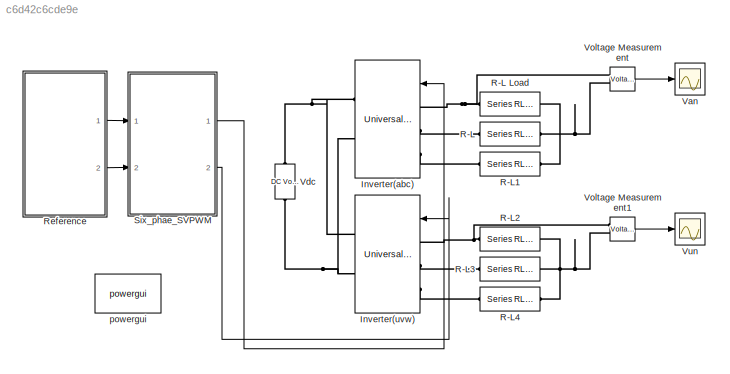
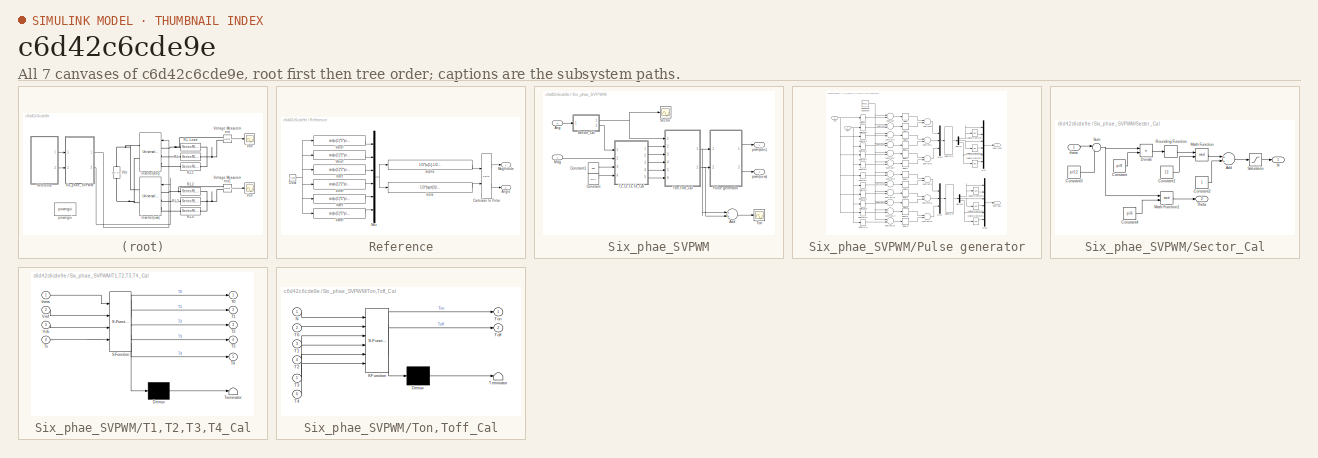
[diagram: thumbnail index - all 7 canvases of the model, root first then tree order]
MODEL slx_c6d42c6cde9e
KIND model
CONFIG InitFcn = Vm=100;\nFc=3000;
BLOCK [Reference] Inverter(abc)  REF=powerlib/Power
Electronics/Universal Bridge
  Arms = 3
  Device = IGBT / Diodes
  ForwardVoltage = 0
  ForwardVoltages = [  0  0  ]
  GTOparameters = [ 10e-6 , 20e-6 ]
  IGBTparameters = [ 1e-6 , 2e-6 ]
  Lon = 0
  Measurements = None
  Measurements_2 = None
  Ports = [1, 0, 0, 0, 0, 3, 2]
  Ron = 1e-3
  SnubberCapacitance = inf
  SnubberResistance = 1e5
  SourceBlock = powerlib/Power\nElectronics/Universal Bridge
  SourceType = Universal Bridge
  converterType = Rectifier
BLOCK [Reference] Inverter(uvw)  REF=powerlib/Power
Electronics/Universal Bridge
  Arms = 3
  Device = IGBT / Diodes
  ForwardVoltage = 0
  ForwardVoltages = [  0  0  ]
  GTOparameters = [ 10e-6 , 20e-6 ]
  IGBTparameters = [ 1e-6 , 2e-6 ]
  Lon = 0
  Measurements = None
  Measurements_2 = None
  Ports = [1, 0, 0, 0, 0, 3, 2]
  Ron = 1e-3
  SnubberCapacitance = inf
  SnubberResistance = 1e5
  SourceBlock = powerlib/Power\nElectronics/Universal Bridge
  SourceType = Universal Bridge
  converterType = Rectifier
BLOCK [Reference] R-L  REF=powerlib/Elements/Series RLC Branch
  AttributesFormatString = \n
  BranchType = RL
  Capacitance = []
  Inductance = 1e-03
  InitialCurrent = 0
  InitialVoltage = 0
  LConnTagsString = __new0
  Measurements = None
  Ports = [0, 0, 0, 0, 0, 1, 1]
  RConnTagsString = __new0
  Resistance = 10
  SetiL0 = off
  Setx0 = off
  SourceBlock = powerlib/Elements/Series RLC Branch
  SourceType = Series RLC Branch
BLOCK [Reference] R-L Load  REF=powerlib/Elements/Series RLC Branch
  AttributesFormatString = \n
  BranchType = RL
  Capacitance = []
  Inductance = 1e-03
  InitialCurrent = 0
  InitialVoltage = 0
  LConnTagsString = __new0
  Measurements = None
  Ports = [0, 0, 0, 0, 0, 1, 1]
  RConnTagsString = __new0
  Resistance = 10
  SetiL0 = off
  Setx0 = off
  SourceBlock = powerlib/Elements/Series RLC Branch
  SourceType = Series RLC Branch
BLOCK [Reference] R-L1  REF=powerlib/Elements/Series RLC Branch
  AttributesFormatString = \n
  BranchType = RL
  Capacitance = []
  Inductance = 1e-03
  InitialCurrent = 0
  InitialVoltage = 0
  LConnTagsString = __new0
  Measurements = None
  Ports = [0, 0, 0, 0, 0, 1, 1]
  RConnTagsString = __new0
  Resistance = 10
  SetiL0 = off
  Setx0 = off
  SourceBlock = powerlib/Elements/Series RLC Branch
  SourceType = Series RLC Branch
BLOCK [Reference] R-L2  REF=powerlib/Elements/Series RLC Branch
  AttributesFormatString = \n
  BranchType = RL
  Capacitance = []
  Inductance = 1e-03
  InitialCurrent = 0
  InitialVoltage = 0
  LConnTagsString = __new0
  Measurements = None
  Ports = [0, 0, 0, 0, 0, 1, 1]
  RConnTagsString = __new0
  Resistance = 10
  SetiL0 = off
  Setx0 = off
  SourceBlock = powerlib/Elements/Series RLC Branch
  SourceType = Series RLC Branch
BLOCK [Reference] R-L3  REF=powerlib/Elements/Series RLC Branch
  AttributesFormatString = \n
  BranchType = RL
  Capacitance = []
  Inductance = 1e-03
  InitialCurrent = 0
  InitialVoltage = 0
  LConnTagsString = __new0
  Measurements = None
  Ports = [0, 0, 0, 0, 0, 1, 1]
  RConnTagsString = __new0
  Resistance = 10
  SetiL0 = off
  Setx0 = off
  SourceBlock = powerlib/Elements/Series RLC Branch
  SourceType = Series RLC Branch
BLOCK [Reference] R-L4  REF=powerlib/Elements/Series RLC Branch
  AttributesFormatString = \n
  BranchType = RL
  Capacitance = []
  Inductance = 1e-03
  InitialCurrent = 0
  InitialVoltage = 0
  LConnTagsString = __new0
  Measurements = None
  Ports = [0, 0, 0, 0, 0, 1, 1]
  RConnTagsString = __new0
  Resistance = 10
  SetiL0 = off
  Setx0 = off
  SourceBlock = powerlib/Elements/Series RLC Branch
  SourceType = Series RLC Branch
BLOCK [SubSystem] Reference
  Ports = [0, 2]
  RequestExecContextInheritance = off
BLOCK [Outport] Reference/Angle
  IconDisplay = Port number
  Port = 2
BLOCK [Reference] Reference/Cartesian to Polar  REF=simulink_extras/Transformations/Cartesian to
Polar
  Ports = [2, 2]
  SourceBlock = simulink_extras/Transformations/Cartesian to\nPolar
  SourceType = Cart2Polar
BLOCK [Clock] Reference/Clock
BLOCK [Outport] Reference/Magnitude
  IconDisplay = Port number
BLOCK [Mux] Reference/Mux
  DisplayOption = bar
  Inputs = 6
  Ports = [6, 1]
BLOCK [Fcn] Reference/Varef
  Expr = cos(u(1)*2*pi*50)*Vm
BLOCK [Fcn] Reference/Vbref
  Expr = cos(u(1)*2*pi*50-2*pi/3)*Vm
BLOCK [Fcn] Reference/Vcref
  Expr = cos(u(1)*2*pi*50+2*pi/3)*Vm
BLOCK [Fcn] Reference/Vuref
  Expr = cos(u(1)*2*pi*50-pi/6)*Vm
BLOCK [Fcn] Reference/Vvref
  Expr = cos(u(1)*2*pi*50-5*pi/6)*Vm
BLOCK [Fcn] Reference/Vwref
  Expr = cos(u(1)*2*pi*50+pi/2)*Vm
BLOCK [Fcn] Reference/alpha
  Expr = 1/3*(u[1]-1/2*u[2]-1/2*u[3]+sqrt(3)/2*u[4]-sqrt(3)/2*u[5])
BLOCK [Fcn] Reference/beta
  Expr = 1/3*(sqrt(3)/2*u[2]-sqrt(3)/2*u[3]+1/2*u[4]+1/2*u[5]-u[6])
BLOCK [SubSystem] Six_phae_SVPWM
  Ports = [2, 2]
  RequestExecContextInheritance = off
BLOCK [Sum] Six_phae_SVPWM/Add
  InputSameDT = off
  OutDataTypeStr = Inherit: Inherit via internal rule
  Ports = [2, 1]
  SaturateOnIntegerOverflow = off
BLOCK [Inport] Six_phae_SVPWM/Ang
  IconDisplay = Port number
  Port = 2
BLOCK [Constant] Six_phae_SVPWM/Constant
  Value = 1/Fc
BLOCK [Constant] Six_phae_SVPWM/Constant1
  Value = 300
BLOCK [Inport] Six_phae_SVPWM/Mag
  IconDisplay = Port number
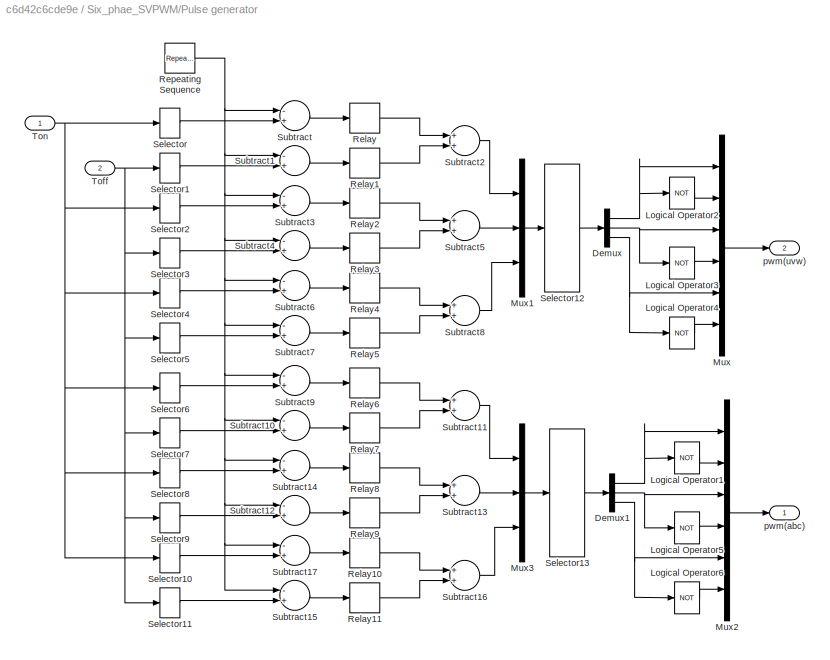
BLOCK [SubSystem] Six_phae_SVPWM/Pulse generator
  Ports = [2, 2]
  RequestExecContextInheritance = off
BLOCK [Demux] Six_phae_SVPWM/Pulse generator/Demux
  DisplayOption = bar
  Outputs = 3
  Ports = [1, 3]
BLOCK [Demux] Six_phae_SVPWM/Pulse generator/Demux1
  DisplayOption = bar
  Outputs = 3
  Ports = [1, 3]
BLOCK [Logic] Six_phae_SVPWM/Pulse generator/Logical Operator1
  Operator = NOT
  OutDataTypeStr = float('double')
  Ports = [1, 1]
BLOCK [Logic] Six_phae_SVPWM/Pulse generator/Logical Operator2
  Operator = NOT
  OutDataTypeStr = float('double')
  Ports = [1, 1]
BLOCK [Logic] Six_phae_SVPWM/Pulse generator/Logical Operator3
  Operator = NOT
  OutDataTypeStr = float('double')
  Ports = [1, 1]
BLOCK [Logic] Six_phae_SVPWM/Pulse generator/Logical Operator4
  Operator = NOT
  OutDataTypeStr = float('double')
  Ports = [1, 1]
BLOCK [Logic] Six_phae_SVPWM/Pulse generator/Logical Operator5
  Operator = NOT
  OutDataTypeStr = float('double')
  Ports = [1, 1]
BLOCK [Logic] Six_phae_SVPWM/Pulse generator/Logical Operator6
  Operator = NOT
  OutDataTypeStr = float('double')
  Ports = [1, 1]
BLOCK [Mux] Six_phae_SVPWM/Pulse generator/Mux
  DisplayOption = bar
  Inputs = 6
  Ports = [6, 1]
BLOCK [Mux] Six_phae_SVPWM/Pulse generator/Mux1
  DisplayOption = bar
  Inputs = 3
  Ports = [3, 1]
BLOCK [Mux] Six_phae_SVPWM/Pulse generator/Mux2
  DisplayOption = bar
  Inputs = 6
  Ports = [6, 1]
BLOCK [Mux] Six_phae_SVPWM/Pulse generator/Mux3
  DisplayOption = bar
  Inputs = 3
  Ports = [3, 1]
BLOCK [Relay] Six_phae_SVPWM/Pulse generator/Relay
  OffSwitchValue = -eps
BLOCK [Relay] Six_phae_SVPWM/Pulse generator/Relay1
  OffOutputValue = -1
  OnOutputValue = 0
BLOCK [Relay] Six_phae_SVPWM/Pulse generator/Relay10
BLOCK [Relay] Six_phae_SVPWM/Pulse generator/Relay11
  OffOutputValue = -1
  OnOutputValue = 0
BLOCK [Relay] Six_phae_SVPWM/Pulse generator/Relay2
BLOCK [Relay] Six_phae_SVPWM/Pulse generator/Relay3
  OffOutputValue = -1
  OnOutputValue = 0
BLOCK [Relay] Six_phae_SVPWM/Pulse generator/Relay4
BLOCK [Relay] Six_phae_SVPWM/Pulse generator/Relay5
  OffOutputValue = -1
  OnOutputValue = 0
BLOCK [Relay] Six_phae_SVPWM/Pulse generator/Relay6
BLOCK [Relay] Six_phae_SVPWM/Pulse generator/Relay7
  OffOutputValue = -1
  OnOutputValue = 0
BLOCK [Relay] Six_phae_SVPWM/Pulse generator/Relay8
BLOCK [Relay] Six_phae_SVPWM/Pulse generator/Relay9
  OffOutputValue = -1
  OnOutputValue = 0
BLOCK [Reference] Six_phae_SVPWM/Pulse generator/Repeating Sequence  REF=simulink/Sources/Repeating
Sequence
  Ports = [0, 1]
  SourceBlock = simulink/Sources/Repeating\nSequence
  SourceType = Repeating table
  rep_seq_t = [0 0.5/Fc 1/Fc]
  rep_seq_y = [0 0.5/Fc 0]
BLOCK [Selector] Six_phae_SVPWM/Pulse generator/Selector
  Indices = [1]
  InputPortWidth = 6
  Ports = [1, 1]
BLOCK [Selector] Six_phae_SVPWM/Pulse generator/Selector1
  Indices = [1]
  InputPortWidth = 6
  Ports = [1, 1]
BLOCK [Selector] Six_phae_SVPWM/Pulse generator/Selector10
  Indices = [6]
  InputPortWidth = 6
  Ports = [1, 1]
BLOCK [Selector] Six_phae_SVPWM/Pulse generator/Selector11
  Indices = [6]
  InputPortWidth = 6
  Ports = [1, 1]
BLOCK [Selector] Six_phae_SVPWM/Pulse generator/Selector12
  Indices = [3 2 1]
  InputPortWidth = 3
  Ports = [1, 1]
BLOCK [Selector] Six_phae_SVPWM/Pulse generator/Selector13
  Indices = [3 2 1]
  InputPortWidth = 3
  Ports = [1, 1]
BLOCK [Selector] Six_phae_SVPWM/Pulse generator/Selector2
  Indices = [2]
  InputPortWidth = 6
  Ports = [1, 1]
BLOCK [Selector] Six_phae_SVPWM/Pulse generator/Selector3
  Indices = [2]
  InputPortWidth = 6
  Ports = [1, 1]
BLOCK [Selector] Six_phae_SVPWM/Pulse generator/Selector4
  Indices = [3]
  InputPortWidth = 6
  Ports = [1, 1]
BLOCK [Selector] Six_phae_SVPWM/Pulse generator/Selector5
  Indices = [3]
  InputPortWidth = 6
  Ports = [1, 1]
BLOCK [Selector] Six_phae_SVPWM/Pulse generator/Selector6
  Indices = [4]
  InputPortWidth = 6
  Ports = [1, 1]
BLOCK [Selector] Six_phae_SVPWM/Pulse generator/Selector7
  Indices = [4]
  InputPortWidth = 6
  Ports = [1, 1]
BLOCK [Selector] Six_phae_SVPWM/Pulse generator/Selector8
  Indices = [5]
  InputPortWidth = 6
  Ports = [1, 1]
BLOCK [Selector] Six_phae_SVPWM/Pulse generator/Selector9
  Indices = [5]
  InputPortWidth = 6
  Ports = [1, 1]
BLOCK [Sum] Six_phae_SVPWM/Pulse generator/Subtract
  InputSameDT = off
  Inputs = -+
  OutDataTypeStr = Inherit: Inherit via internal rule
  Ports = [2, 1]
  SaturateOnIntegerOverflow = off
BLOCK [Sum] Six_phae_SVPWM/Pulse generator/Subtract1
  InputSameDT = off
  Inputs = -+
  OutDataTypeStr = Inherit: Inherit via internal rule
  Ports = [2, 1]
  SaturateOnIntegerOverflow = off
BLOCK [Sum] Six_phae_SVPWM/Pulse generator/Subtract10
  InputSameDT = off
  Inputs = -+
  OutDataTypeStr = Inherit: Inherit via internal rule
  Ports = [2, 1]
  SaturateOnIntegerOverflow = off
BLOCK [Sum] Six_phae_SVPWM/Pulse generator/Subtract11
  InputSameDT = off
  OutDataTypeStr = Inherit: Inherit via internal rule
  Ports = [2, 1]
  SaturateOnIntegerOverflow = off
BLOCK [Sum] Six_phae_SVPWM/Pulse generator/Subtract12
  InputSameDT = off
  Inputs = -+
  OutDataTypeStr = Inherit: Inherit via internal rule
  Ports = [2, 1]
  SaturateOnIntegerOverflow = off
BLOCK [Sum] Six_phae_SVPWM/Pulse generator/Subtract13
  InputSameDT = off
  OutDataTypeStr = Inherit: Inherit via internal rule
  Ports = [2, 1]
  SaturateOnIntegerOverflow = off
BLOCK [Sum] Six_phae_SVPWM/Pulse generator/Subtract14
  InputSameDT = off
  Inputs = -+
  OutDataTypeStr = Inherit: Inherit via internal rule
  Ports = [2, 1]
  SaturateOnIntegerOverflow = off
BLOCK [Sum] Six_phae_SVPWM/Pulse generator/Subtract15
  InputSameDT = off
  Inputs = -+
  OutDataTypeStr = Inherit: Inherit via internal rule
  Ports = [2, 1]
  SaturateOnIntegerOverflow = off
BLOCK [Sum] Six_phae_SVPWM/Pulse generator/Subtract16
  InputSameDT = off
  OutDataTypeStr = Inherit: Inherit via internal rule
  Ports = [2, 1]
  SaturateOnIntegerOverflow = off
BLOCK [Sum] Six_phae_SVPWM/Pulse generator/Subtract17
  InputSameDT = off
  Inputs = -+
  OutDataTypeStr = Inherit: Inherit via internal rule
  Ports = [2, 1]
  SaturateOnIntegerOverflow = off
BLOCK [Sum] Six_phae_SVPWM/Pulse generator/Subtract2
  InputSameDT = off
  OutDataTypeStr = Inherit: Inherit via internal rule
  Ports = [2, 1]
  SaturateOnIntegerOverflow = off
BLOCK [Sum] Six_phae_SVPWM/Pulse generator/Subtract3
  InputSameDT = off
  Inputs = -+
  OutDataTypeStr = Inherit: Inherit via internal rule
  Ports = [2, 1]
  SaturateOnIntegerOverflow = off
BLOCK [Sum] Six_phae_SVPWM/Pulse generator/Subtract4
  InputSameDT = off
  Inputs = -+
  OutDataTypeStr = Inherit: Inherit via internal rule
  Ports = [2, 1]
  SaturateOnIntegerOverflow = off
BLOCK [Sum] Six_phae_SVPWM/Pulse generator/Subtract5
  InputSameDT = off
  OutDataTypeStr = Inherit: Inherit via internal rule
  Ports = [2, 1]
  SaturateOnIntegerOverflow = off
BLOCK [Sum] Six_phae_SVPWM/Pulse generator/Subtract6
  InputSameDT = off
  Inputs = -+
  OutDataTypeStr = Inherit: Inherit via internal rule
  Ports = [2, 1]
  SaturateOnIntegerOverflow = off
BLOCK [Sum] Six_phae_SVPWM/Pulse generator/Subtract7
  InputSameDT = off
  Inputs = -+
  OutDataTypeStr = Inherit: Inherit via internal rule
  Ports = [2, 1]
  SaturateOnIntegerOverflow = off
BLOCK [Sum] Six_phae_SVPWM/Pulse generator/Subtract8
  InputSameDT = off
  OutDataTypeStr = Inherit: Inherit via internal rule
  Ports = [2, 1]
  SaturateOnIntegerOverflow = off
BLOCK [Sum] Six_phae_SVPWM/Pulse generator/Subtract9
  InputSameDT = off
  Inputs = -+
  OutDataTypeStr = Inherit: Inherit via internal rule
  Ports = [2, 1]
  SaturateOnIntegerOverflow = off
BLOCK [Inport] Six_phae_SVPWM/Pulse generator/Toff
  IconDisplay = Port number
  Port = 2
BLOCK [Inport] Six_phae_SVPWM/Pulse generator/Ton
  IconDisplay = Port number
BLOCK [Outport] Six_phae_SVPWM/Pulse generator/pwm(abc)
  IconDisplay = Port number
BLOCK [Outport] Six_phae_SVPWM/Pulse generator/pwm(uvw)
  IconDisplay = Port number
  Port = 2
BLOCK [Scope] Six_phae_SVPWM/Sector
  DataFormat = StructureWithTime
  Floating = off
  LimitDataPoints = off
  NumInputPorts = 1
  Ports = [1]
  SampleInput = on
  SampleTime = 1e-6
  SaveName = N
  SaveToWorkspace = on
  ShowLegends = off
  YMax = 12
  YMin = 0
BLOCK [SubSystem] Six_phae_SVPWM/Sector_Cal
  Ports = [1, 2]
  RequestExecContextInheritance = off
BLOCK [Sum] Six_phae_SVPWM/Sector_Cal/Add
  InputSameDT = off
  OutDataTypeStr = Inherit: Inherit via internal rule
  Ports = [2, 1]
  SaturateOnIntegerOverflow = off
BLOCK [Constant] Six_phae_SVPWM/Sector_Cal/Constant
  Value = pi/6
BLOCK [Constant] Six_phae_SVPWM/Sector_Cal/Constant1
  Value = 12
BLOCK [Constant] Six_phae_SVPWM/Sector_Cal/Constant2
BLOCK [Constant] Six_phae_SVPWM/Sector_Cal/Constant3
  Value = pi/12
BLOCK [Constant] Six_phae_SVPWM/Sector_Cal/Constant4
  Value = pi/6
BLOCK [Product] Six_phae_SVPWM/Sector_Cal/Divide
  InputSameDT = off
  Inputs = */
  OutDataTypeStr = Inherit: Inherit via internal rule
  Ports = [2, 1]
  RndMeth = Floor
  SaturateOnIntegerOverflow = off
BLOCK [Math] Six_phae_SVPWM/Sector_Cal/Math Function
  Operator = mod
  Ports = [2, 1]
BLOCK [Math] Six_phae_SVPWM/Sector_Cal/Math Function1
  Operator = mod
  Ports = [2, 1]
BLOCK [Outport] Six_phae_SVPWM/Sector_Cal/N
  IconDisplay = Port number
BLOCK [Rounding] Six_phae_SVPWM/Sector_Cal/Rounding Function
BLOCK [Saturate] Six_phae_SVPWM/Sector_Cal/Saturation
  InputPortMap = u0
  LowerLimit = 1
  Ports = [1, 1]
  UpperLimit = 12
BLOCK [Sum] Six_phae_SVPWM/Sector_Cal/Sum
  IconShape = round
  InputSameDT = off
  Inputs = |++
  OutDataTypeStr = Inherit: Inherit via internal rule
  Ports = [2, 1]
  SaturateOnIntegerOverflow = off
BLOCK [Outport] Six_phae_SVPWM/Sector_Cal/Theta
  IconDisplay = Port number
  Port = 2
BLOCK [Inport] Six_phae_SVPWM/Sector_Cal/theta
  IconDisplay = Port number
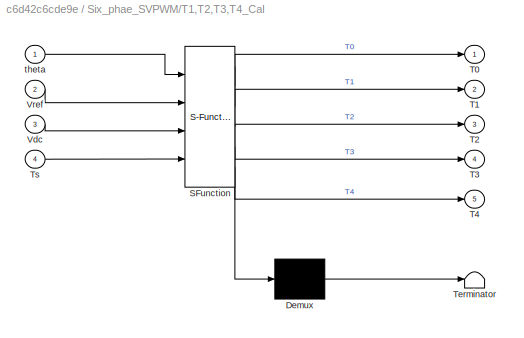
BLOCK [SubSystem] Six_phae_SVPWM/T1,T2,T3,T4_Cal
  ErrorFcn = Stateflow.Translate.translate
  PermitHierarchicalResolution = ExplicitOnly
  Ports = [4, 5]
  RequestExecContextInheritance = off
  SFBlockType = MATLAB Function
  TreatAsAtomicUnit = on
BLOCK [Demux] Six_phae_SVPWM/T1,T2,T3,T4_Cal/ Demux 
  Outputs = 1
  Ports = [1, 1]
BLOCK [S-Function] Six_phae_SVPWM/T1,T2,T3,T4_Cal/ SFunction 
  EnableBusSupport = on
  FunctionName = sf_sfun
  PortCounts = [4 6]
  Ports = [4, 6]
  Tag = Stateflow S-Function Six_phase_inverter 2
BLOCK [Terminator] Six_phae_SVPWM/T1,T2,T3,T4_Cal/ Terminator 
BLOCK [Outport] Six_phae_SVPWM/T1,T2,T3,T4_Cal/T0
  IconDisplay = Port number
BLOCK [Outport] Six_phae_SVPWM/T1,T2,T3,T4_Cal/T1
  IconDisplay = Port number
  Port = 2
BLOCK [Outport] Six_phae_SVPWM/T1,T2,T3,T4_Cal/T2
  IconDisplay = Port number
  Port = 3
BLOCK [Outport] Six_phae_SVPWM/T1,T2,T3,T4_Cal/T3
  IconDisplay = Port number
  Port = 4
BLOCK [Outport] Six_phae_SVPWM/T1,T2,T3,T4_Cal/T4
  IconDisplay = Port number
  Port = 5
BLOCK [Inport] Six_phae_SVPWM/T1,T2,T3,T4_Cal/Ts
  IconDisplay = Port number
  Port = 4
BLOCK [Inport] Six_phae_SVPWM/T1,T2,T3,T4_Cal/Vdc
  IconDisplay = Port number
  Port = 3
BLOCK [Inport] Six_phae_SVPWM/T1,T2,T3,T4_Cal/Vref
  IconDisplay = Port number
  Port = 2
BLOCK [Inport] Six_phae_SVPWM/T1,T2,T3,T4_Cal/theta
  IconDisplay = Port number
BLOCK [Scope] Six_phae_SVPWM/Ton
  DataFormat = StructureWithTime
  Floating = off
  LimitDataPoints = off
  NumInputPorts = 1
  Ports = [1]
  SampleInput = on
  SampleTime = 1e-6
  SaveName = Ton
  SaveToWorkspace = on
  ShowLegends = off
  YMax = 12
  YMin = 0
  ZoomMode = yonly
BLOCK [SubSystem] Six_phae_SVPWM/Ton,Toff_Cal
  ErrorFcn = Stateflow.Translate.translate
  PermitHierarchicalResolution = ExplicitOnly
  Ports = [6, 2]
  RequestExecContextInheritance = off
  SFBlockType = MATLAB Function
  TreatAsAtomicUnit = on
BLOCK [Demux] Six_phae_SVPWM/Ton,Toff_Cal/ Demux 
  Outputs = 1
  Ports = [1, 1]
BLOCK [S-Function] Six_phae_SVPWM/Ton,Toff_Cal/ SFunction 
  EnableBusSupport = on
  FunctionName = sf_sfun
  PortCounts = [6 3]
  Ports = [6, 3]
  Tag = Stateflow S-Function Six_phase_inverter 4
BLOCK [Terminator] Six_phae_SVPWM/Ton,Toff_Cal/ Terminator 
BLOCK [Inport] Six_phae_SVPWM/Ton,Toff_Cal/N
  IconDisplay = Port number
BLOCK [Inport] Six_phae_SVPWM/Ton,Toff_Cal/T0
  IconDisplay = Port number
  Port = 2
BLOCK [Inport] Six_phae_SVPWM/Ton,Toff_Cal/T1
  IconDisplay = Port number
  Port = 3
BLOCK [Inport] Six_phae_SVPWM/Ton,Toff_Cal/T2
  IconDisplay = Port number
  Port = 4
BLOCK [Inport] Six_phae_SVPWM/Ton,Toff_Cal/T3
  IconDisplay = Port number
  Port = 5
BLOCK [Inport] Six_phae_SVPWM/Ton,Toff_Cal/T4
  IconDisplay = Port number
  Port = 6
BLOCK [Outport] Six_phae_SVPWM/Ton,Toff_Cal/Toff
  IconDisplay = Port number
  Port = 2
BLOCK [Outport] Six_phae_SVPWM/Ton,Toff_Cal/Ton
  IconDisplay = Port number
BLOCK [Outport] Six_phae_SVPWM/pwm(abc)
  IconDisplay = Port number
BLOCK [Outport] Six_phae_SVPWM/pwm(uvw)
  IconDisplay = Port number
  Port = 2
BLOCK [Scope] Van
  DataFormat = StructureWithTime
  Floating = off
  LimitDataPoints = off
  NumInputPorts = 1
  Ports = [1]
  SampleInput = on
  SampleTime = 1e-6
  SaveName = Van
  SaveToWorkspace = on
  ShowLegends = off
  TimeRange = 0.05
  YMax = 200
  YMin = -200
BLOCK [Reference] Vdc  REF=powerlib/Electrical
Sources/DC Voltage Source
  Amplitude = 300
  Measurements = None
  Ports = [0, 0, 0, 0, 0, 1, 1]
  SourceBlock = powerlib/Electrical\nSources/DC Voltage Source
  SourceType = DC Voltage Source
BLOCK [Reference] Voltage Measurement  REF=powerlib/Measurements/Voltage Measurement
  OutputType = Complex
  PSBequivalent = 0
  PhasorSimulation = off
  Ports = [0, 1, 0, 0, 0, 2]
  SourceBlock = powerlib/Measurements/Voltage Measurement
  SourceType = Voltage Measurement
BLOCK [Reference] Voltage Measurement1  REF=powerlib/Measurements/Voltage Measurement
  OutputType = Complex
  PSBequivalent = 0
  PhasorSimulation = off
  Ports = [0, 1, 0, 0, 0, 2]
  SourceBlock = powerlib/Measurements/Voltage Measurement
  SourceType = Voltage Measurement
BLOCK [Scope] Vun
  DataFormat = StructureWithTime
  Floating = off
  LimitDataPoints = off
  NumInputPorts = 1
  Ports = [1]
  SampleInput = on
  SampleTime = 1e-6
  SaveName = Vbn
  SaveToWorkspace = on
  ShowLegends = off
  YMax = 200
  YMin = -200
BLOCK [Reference] powergui  REF=powerlib/powergui
  DisableRonSwitches = off
  DisableSnubberDevices = off
  DisableVfSwitches = off
  DisplayEquations = off
  DisplayStyle = 1
  EnableUseOfTLC = off
  ErrMax = 1e-4
  Frange = [0:2:500]
  FreqAxis = off
  FunctionMessages = off
  HookPort = off
  Interpol = off
  Iterations = 50
  MaxFrequency = 1000
  Pbase = 100e6
  Ports = []
  Priority = 1
  ResistiveCurrentMeasurement = off
  RestoreLinks = warning
  RmsSteady = 1
  SPID = off
  SampleTime = 50e-6
  ShowGrid = off
  SolverType = Tustin/Backward Euler (TBE)
  SourceBlock = powerlib/powergui
  SourceType = PSB option menu block
  StartTime = 0.0
  SwTol = 0
  Ts = 100
  UnitsV = kV
  UnitsW = MW
  UserDataPersistent = on
  Xlog = on
  Ylog = off
  ZoomFFT = off
  cycles = 1
  display = off
  echomessages = off
  frequency = 60
  frequencyindice = 0
  frequencyindicesteady = 1
  fundamental = 60
  methode = off
  save = off
  structure = 0
  variable = ZData
  x0status = blocks
LINE Reference/Cartesian to Polar:1 -> Reference/Magnitude:1
LINE Reference/Cartesian to Polar:2 -> Reference/Angle:1
NET Reference/Clock:1 -> Reference/Varef:1, Reference/Vbref:1, Reference/Vcref:1, Reference/Vuref:1, Reference/Vvref:1, Reference/Vwref:1
NET Reference/Mux:1 -> Reference/alpha:1, Reference/beta:1
LINE Reference/Varef:1 -> Reference/Mux:1
LINE Reference/Vbref:1 -> Reference/Mux:2
LINE Reference/Vcref:1 -> Reference/Mux:3
LINE Reference/Vuref:1 -> Reference/Mux:4
LINE Reference/Vvref:1 -> Reference/Mux:5
LINE Reference/Vwref:1 -> Reference/Mux:6
LINE Reference/alpha:1 -> Reference/Cartesian to Polar:1
LINE Reference/beta:1 -> Reference/Cartesian to Polar:2
LINE Reference:1 -> Six_phae_SVPWM:1
LINE Reference:2 -> Six_phae_SVPWM:2
LINE Six_phae_SVPWM/Add:1 -> Six_phae_SVPWM/Ton:1
LINE Six_phae_SVPWM/Ang:1 -> Six_phae_SVPWM/Sector_Cal:1
LINE Six_phae_SVPWM/Constant1:1 -> Six_phae_SVPWM/T1,T2,T3,T4_Cal:3
LINE Six_phae_SVPWM/Constant:1 -> Six_phae_SVPWM/T1,T2,T3,T4_Cal:4
LINE Six_phae_SVPWM/Mag:1 -> Six_phae_SVPWM/T1,T2,T3,T4_Cal:2
NET Six_phae_SVPWM/Pulse generator/Demux1:1 -> Six_phae_SVPWM/Pulse generator/Logical Operator1:1, Six_phae_SVPWM/Pulse generator/Mux2:1
NET Six_phae_SVPWM/Pulse generator/Demux1:2 -> Six_phae_SVPWM/Pulse generator/Logical Operator5:1, Six_phae_SVPWM/Pulse generator/Mux2:3
NET Six_phae_SVPWM/Pulse generator/Demux1:3 -> Six_phae_SVPWM/Pulse generator/Logical Operator6:1, Six_phae_SVPWM/Pulse generator/Mux2:5
NET Six_phae_SVPWM/Pulse generator/Demux:1 -> Six_phae_SVPWM/Pulse generator/Logical Operator2:1, Six_phae_SVPWM/Pulse generator/Mux:1
NET Six_phae_SVPWM/Pulse generator/Demux:2 -> Six_phae_SVPWM/Pulse generator/Logical Operator3:1, Six_phae_SVPWM/Pulse generator/Mux:3
NET Six_phae_SVPWM/Pulse generator/Demux:3 -> Six_phae_SVPWM/Pulse generator/Logical Operator4:1, Six_phae_SVPWM/Pulse generator/Mux:5
LINE Six_phae_SVPWM/Pulse generator/Logical Operator1:1 -> Six_phae_SVPWM/Pulse generator/Mux2:2
LINE Six_phae_SVPWM/Pulse generator/Logical Operator2:1 -> Six_phae_SVPWM/Pulse generator/Mux:2
LINE Six_phae_SVPWM/Pulse generator/Logical Operator3:1 -> Six_phae_SVPWM/Pulse generator/Mux:4
LINE Six_phae_SVPWM/Pulse generator/Logical Operator4:1 -> Six_phae_SVPWM/Pulse generator/Mux:6
LINE Six_phae_SVPWM/Pulse generator/Logical Operator5:1 -> Six_phae_SVPWM/Pulse generator/Mux2:4
LINE Six_phae_SVPWM/Pulse generator/Logical Operator6:1 -> Six_phae_SVPWM/Pulse generator/Mux2:6
LINE Six_phae_SVPWM/Pulse generator/Mux1:1 -> Six_phae_SVPWM/Pulse generator/Selector12:1
LINE Six_phae_SVPWM/Pulse generator/Mux2:1 -> Six_phae_SVPWM/Pulse generator/pwm(abc):1
LINE Six_phae_SVPWM/Pulse generator/Mux3:1 -> Six_phae_SVPWM/Pulse generator/Selector13:1
LINE Six_phae_SVPWM/Pulse generator/Mux:1 -> Six_phae_SVPWM/Pulse generator/pwm(uvw):1
LINE Six_phae_SVPWM/Pulse generator/Relay10:1 -> Six_phae_SVPWM/Pulse generator/Subtract16:1
LINE Six_phae_SVPWM/Pulse generator/Relay11:1 -> Six_phae_SVPWM/Pulse generator/Subtract16:2
LINE Six_phae_SVPWM/Pulse generator/Relay1:1 -> Six_phae_SVPWM/Pulse generator/Subtract2:2
LINE Six_phae_SVPWM/Pulse generator/Relay2:1 -> Six_phae_SVPWM/Pulse generator/Subtract5:1
LINE Six_phae_SVPWM/Pulse generator/Relay3:1 -> Six_phae_SVPWM/Pulse generator/Subtract5:2
LINE Six_phae_SVPWM/Pulse generator/Relay4:1 -> Six_phae_SVPWM/Pulse generator/Subtract8:1
LINE Six_phae_SVPWM/Pulse generator/Relay5:1 -> Six_phae_SVPWM/Pulse generator/Subtract8:2
LINE Six_phae_SVPWM/Pulse generator/Relay6:1 -> Six_phae_SVPWM/Pulse generator/Subtract11:1
LINE Six_phae_SVPWM/Pulse generator/Relay7:1 -> Six_phae_SVPWM/Pulse generator/Subtract11:2
LINE Six_phae_SVPWM/Pulse generator/Relay8:1 -> Six_phae_SVPWM/Pulse generator/Subtract13:1
LINE Six_phae_SVPWM/Pulse generator/Relay9:1 -> Six_phae_SVPWM/Pulse generator/Subtract13:2
LINE Six_phae_SVPWM/Pulse generator/Relay:1 -> Six_phae_SVPWM/Pulse generator/Subtract2:1
NET Six_phae_SVPWM/Pulse generator/Repeating Sequence:1 -> Six_phae_SVPWM/Pulse generator/Subtract10:1, Six_phae_SVPWM/Pulse generator/Subtract12:1, Six_phae_SVPWM/Pulse generator/Subtract14:1, Six_phae_SVPWM/Pulse generator/Subtract15:1, Six_phae_SVPWM/Pulse generator/Subtract17:1, Six_phae_SVPWM/Pulse generator/Subtract1:1, Six_phae_SVPWM/Pulse generator/Subtract3:1, Six_phae_SVPWM/Pulse generator/Subtract4:1, Six_phae_SVPWM/Pulse generator/Subtract6:1, Six_phae_SVPWM/Pulse generator/Subtract7:1, Six_phae_SVPWM/Pulse generator/Subtract9:1, Six_phae_SVPWM/Pulse generator/Subtract:1
LINE Six_phae_SVPWM/Pulse generator/Selector10:1 -> Six_phae_SVPWM/Pulse generator/Subtract17:2
LINE Six_phae_SVPWM/Pulse generator/Selector11:1 -> Six_phae_SVPWM/Pulse generator/Subtract15:2
LINE Six_phae_SVPWM/Pulse generator/Selector12:1 -> Six_phae_SVPWM/Pulse generator/Demux:1
LINE Six_phae_SVPWM/Pulse generator/Selector13:1 -> Six_phae_SVPWM/Pulse generator/Demux1:1
LINE Six_phae_SVPWM/Pulse generator/Selector1:1 -> Six_phae_SVPWM/Pulse generator/Subtract1:2
LINE Six_phae_SVPWM/Pulse generator/Selector2:1 -> Six_phae_SVPWM/Pulse generator/Subtract3:2
LINE Six_phae_SVPWM/Pulse generator/Selector3:1 -> Six_phae_SVPWM/Pulse generator/Subtract4:2
LINE Six_phae_SVPWM/Pulse generator/Selector4:1 -> Six_phae_SVPWM/Pulse generator/Subtract6:2
LINE Six_phae_SVPWM/Pulse generator/Selector5:1 -> Six_phae_SVPWM/Pulse generator/Subtract7:2
LINE Six_phae_SVPWM/Pulse generator/Selector6:1 -> Six_phae_SVPWM/Pulse generator/Subtract9:2
LINE Six_phae_SVPWM/Pulse generator/Selector7:1 -> Six_phae_SVPWM/Pulse generator/Subtract10:2
LINE Six_phae_SVPWM/Pulse generator/Selector8:1 -> Six_phae_SVPWM/Pulse generator/Subtract14:2
LINE Six_phae_SVPWM/Pulse generator/Selector9:1 -> Six_phae_SVPWM/Pulse generator/Subtract12:2
LINE Six_phae_SVPWM/Pulse generator/Selector:1 -> Six_phae_SVPWM/Pulse generator/Subtract:2
LINE Six_phae_SVPWM/Pulse generator/Subtract10:1 -> Six_phae_SVPWM/Pulse generator/Relay7:1
LINE Six_phae_SVPWM/Pulse generator/Subtract11:1 -> Six_phae_SVPWM/Pulse generator/Mux3:1
LINE Six_phae_SVPWM/Pulse generator/Subtract12:1 -> Six_phae_SVPWM/Pulse generator/Relay9:1
LINE Six_phae_SVPWM/Pulse generator/Subtract13:1 -> Six_phae_SVPWM/Pulse generator/Mux3:2
LINE Six_phae_SVPWM/Pulse generator/Subtract14:1 -> Six_phae_SVPWM/Pulse generator/Relay8:1
LINE Six_phae_SVPWM/Pulse generator/Subtract15:1 -> Six_phae_SVPWM/Pulse generator/Relay11:1
LINE Six_phae_SVPWM/Pulse generator/Subtract16:1 -> Six_phae_SVPWM/Pulse generator/Mux3:3
LINE Six_phae_SVPWM/Pulse generator/Subtract17:1 -> Six_phae_SVPWM/Pulse generator/Relay10:1
LINE Six_phae_SVPWM/Pulse generator/Subtract1:1 -> Six_phae_SVPWM/Pulse generator/Relay1:1
LINE Six_phae_SVPWM/Pulse generator/Subtract2:1 -> Six_phae_SVPWM/Pulse generator/Mux1:1
LINE Six_phae_SVPWM/Pulse generator/Subtract3:1 -> Six_phae_SVPWM/Pulse generator/Relay2:1
LINE Six_phae_SVPWM/Pulse generator/Subtract4:1 -> Six_phae_SVPWM/Pulse generator/Relay3:1
LINE Six_phae_SVPWM/Pulse generator/Subtract5:1 -> Six_phae_SVPWM/Pulse generator/Mux1:2
LINE Six_phae_SVPWM/Pulse generator/Subtract6:1 -> Six_phae_SVPWM/Pulse generator/Relay4:1
LINE Six_phae_SVPWM/Pulse generator/Subtract7:1 -> Six_phae_SVPWM/Pulse generator/Relay5:1
LINE Six_phae_SVPWM/Pulse generator/Subtract8:1 -> Six_phae_SVPWM/Pulse generator/Mux1:3
LINE Six_phae_SVPWM/Pulse generator/Subtract9:1 -> Six_phae_SVPWM/Pulse generator/Relay6:1
LINE Six_phae_SVPWM/Pulse generator/Subtract:1 -> Six_phae_SVPWM/Pulse generator/Relay:1
NET Six_phae_SVPWM/Pulse generator/Toff:1 -> Six_phae_SVPWM/Pulse generator/Selector11:1, Six_phae_SVPWM/Pulse generator/Selector1:1, Six_phae_SVPWM/Pulse generator/Selector3:1, Six_phae_SVPWM/Pulse generator/Selector5:1, Six_phae_SVPWM/Pulse generator/Selector7:1, Six_phae_SVPWM/Pulse generator/Selector9:1
NET Six_phae_SVPWM/Pulse generator/Ton:1 -> Six_phae_SVPWM/Pulse generator/Selector10:1, Six_phae_SVPWM/Pulse generator/Selector2:1, Six_phae_SVPWM/Pulse generator/Selector4:1, Six_phae_SVPWM/Pulse generator/Selector6:1, Six_phae_SVPWM/Pulse generator/Selector8:1, Six_phae_SVPWM/Pulse generator/Selector:1
LINE Six_phae_SVPWM/Pulse generator:1 -> Six_phae_SVPWM/pwm(abc):1
LINE Six_phae_SVPWM/Pulse generator:2 -> Six_phae_SVPWM/pwm(uvw):1
LINE Six_phae_SVPWM/Sector_Cal/Add:1 -> Six_phae_SVPWM/Sector_Cal/Saturation:1
LINE Six_phae_SVPWM/Sector_Cal/Constant1:1 -> Six_phae_SVPWM/Sector_Cal/Math Function:2
LINE Six_phae_SVPWM/Sector_Cal/Constant2:1 -> Six_phae_SVPWM/Sector_Cal/Add:2
LINE Six_phae_SVPWM/Sector_Cal/Constant3:1 -> Six_phae_SVPWM/Sector_Cal/Sum:2
LINE Six_phae_SVPWM/Sector_Cal/Constant4:1 -> Six_phae_SVPWM/Sector_Cal/Math Function1:2
LINE Six_phae_SVPWM/Sector_Cal/Constant:1 -> Six_phae_SVPWM/Sector_Cal/Divide:2
LINE Six_phae_SVPWM/Sector_Cal/Divide:1 -> Six_phae_SVPWM/Sector_Cal/Rounding Function:1
LINE Six_phae_SVPWM/Sector_Cal/Math Function1:1 -> Six_phae_SVPWM/Sector_Cal/Theta:1
LINE Six_phae_SVPWM/Sector_Cal/Math Function:1 -> Six_phae_SVPWM/Sector_Cal/Add:1
LINE Six_phae_SVPWM/Sector_Cal/Rounding Function:1 -> Six_phae_SVPWM/Sector_Cal/Math Function:1
LINE Six_phae_SVPWM/Sector_Cal/Saturation:1 -> Six_phae_SVPWM/Sector_Cal/N:1
NET Six_phae_SVPWM/Sector_Cal/Sum:1 -> Six_phae_SVPWM/Sector_Cal/Divide:1, Six_phae_SVPWM/Sector_Cal/Math Function1:1
LINE Six_phae_SVPWM/Sector_Cal/theta:1 -> Six_phae_SVPWM/Sector_Cal/Sum:1
NET Six_phae_SVPWM/Sector_Cal:1 -> Six_phae_SVPWM/Sector:1, Six_phae_SVPWM/Ton,Toff_Cal:1
LINE Six_phae_SVPWM/Sector_Cal:2 -> Six_phae_SVPWM/T1,T2,T3,T4_Cal:1
LINE Six_phae_SVPWM/T1,T2,T3,T4_Cal:1 -> Six_phae_SVPWM/Ton,Toff_Cal:2
LINE Six_phae_SVPWM/T1,T2,T3,T4_Cal:2 -> Six_phae_SVPWM/Ton,Toff_Cal:3
LINE Six_phae_SVPWM/T1,T2,T3,T4_Cal:3 -> Six_phae_SVPWM/Ton,Toff_Cal:4
LINE Six_phae_SVPWM/T1,T2,T3,T4_Cal:4 -> Six_phae_SVPWM/Ton,Toff_Cal:5
LINE Six_phae_SVPWM/T1,T2,T3,T4_Cal:5 -> Six_phae_SVPWM/Ton,Toff_Cal:6
NET Six_phae_SVPWM/Ton,Toff_Cal:1 -> Six_phae_SVPWM/Add:1, Six_phae_SVPWM/Pulse generator:1
NET Six_phae_SVPWM/Ton,Toff_Cal:2 -> Six_phae_SVPWM/Add:2, Six_phae_SVPWM/Pulse generator:2
LINE Six_phae_SVPWM:1 -> Inverter(abc):1
LINE Six_phae_SVPWM:2 -> Inverter(uvw):1
LINE Voltage Measurement1:1 -> Vun:1
LINE Voltage Measurement:1 -> Van:1
PNET net1: Inverter(abc):LConn1 -- R-L Load:LConn1 -- Voltage Measurement:LConn1
PLINE Inverter(abc):LConn2 -- R-L:LConn1
PLINE Inverter(abc):LConn3 -- R-L1:LConn1
PNET net2: Inverter(abc):RConn1 -- Inverter(uvw):RConn1 -- Vdc:RConn1
PNET net3: Inverter(abc):RConn2 -- Inverter(uvw):RConn2 -- Vdc:LConn1
PNET net4: Inverter(uvw):LConn1 -- R-L2:LConn1 -- Voltage Measurement1:LConn1
PLINE Inverter(uvw):LConn2 -- R-L3:LConn1
PLINE Inverter(uvw):LConn3 -- R-L4:LConn1
PNET net5: R-L Load:RConn1 -- R-L1:RConn1 -- R-L:RConn1 -- Voltage Measurement:LConn2
PNET net6: R-L2:RConn1 -- R-L3:RConn1 -- R-L4:RConn1 -- Voltage Measurement1:LConn2
note: NET lines group one-source signal fan-out (src -> all destinations, sorted); 1:1 wires keep LINE; PNET lines group multi-terminal physical nets as a canonical sorted terminal list (undirected conserving connections); 2-terminal nets keep the pairwise PLINE form
CHART Six_phae_SVPWM/T1,T2,T3,T4_Cal states=1 transitions=1
  STATE_LABEL 'eML_blk_kernel()'
  STATE_LABEL 'SCRIPT:\nfunction [T0,T1,T2,T3,T4] = fcn(theta,Vref,Vdc,Ts)\n%#codegen\n\nk = sqrt(3)*(sqrt(3)-1)/(2*sqrt(2))/Vdc*Vref*Ts;\nm = sin(pi/6-theta);\nn = sin(theta);\n\nA = k*m; %T1\nB = k*(sqrt(3)*m+n);%T2\nC = k*(m+sqrt(3)*n); %T3\nD = k*n;            %T4\n\nif A+B+C+D>Ts\n    T1 = A/(A+B+C+D)*Ts;\n    T2 = B/(A+B+C+D)*Ts;\n    T3 = C/(A+B+C+D)*Ts;\n    T4 = D/(A+B+C+D)*Ts;\n    T0 = Ts-T1-T2-T3-T4;\nelse\n    T1 = A;\n...<+68ch>'
CHART Six_phae_SVPWM/Ton,Toff_Cal states=1 transitions=1
  STATE_LABEL 'eML_blk_kernel()'
  STATE_LABEL 'SCRIPT:\nfunction [Ton,Toff] = fcn(N,T0,T1,T2,T3,T4)\n%#codegen\nt01 = 1/4*T0;\nt02 = 1/2*T0;\n\nta1 = t01;\ntb1 = ta1+T2;\ntc1 = tb1+T1;\ntd1 = tc1+t02;\nte1 = td1+T4;\ntf1 = te1+T3;\n\nta2 = t01;\ntb2 = ta2+T1;\ntc2 = tb2+T2;\ntd2 = tc2+t02;\nte2 = td2+T3;\ntf2 = te2+T4;\n\nTon = zeros(6,1);\nToff = zeros(6,1);\n\nswitch (N)\n    case 1\n        Ton(1) = ta1;Ton(2) = tc1; Ton(3) = ta1; \n        Ton(4) = tb1;Ton(5) = tc1...<+2466ch>'
